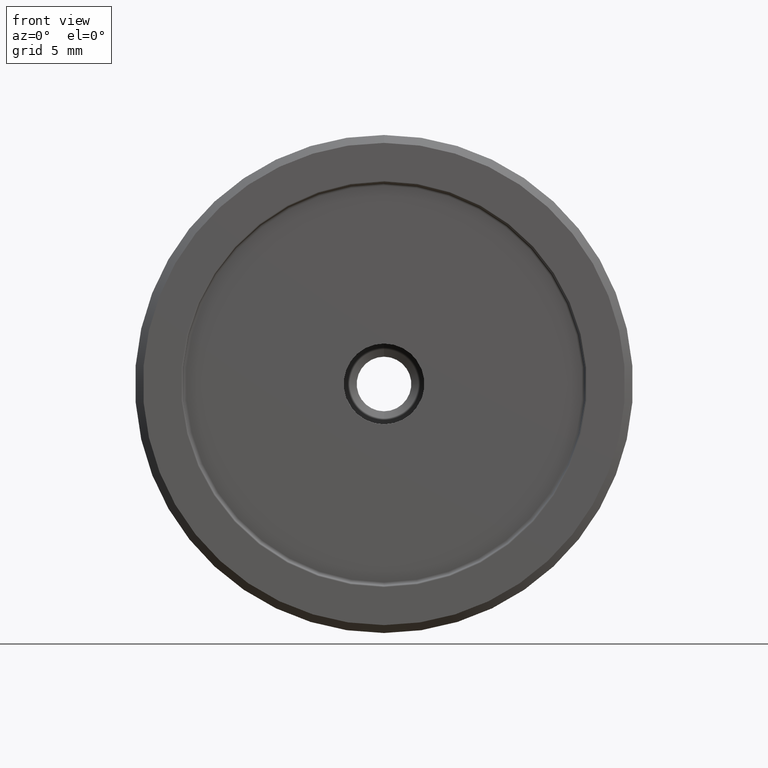
[diagram: clean part render]
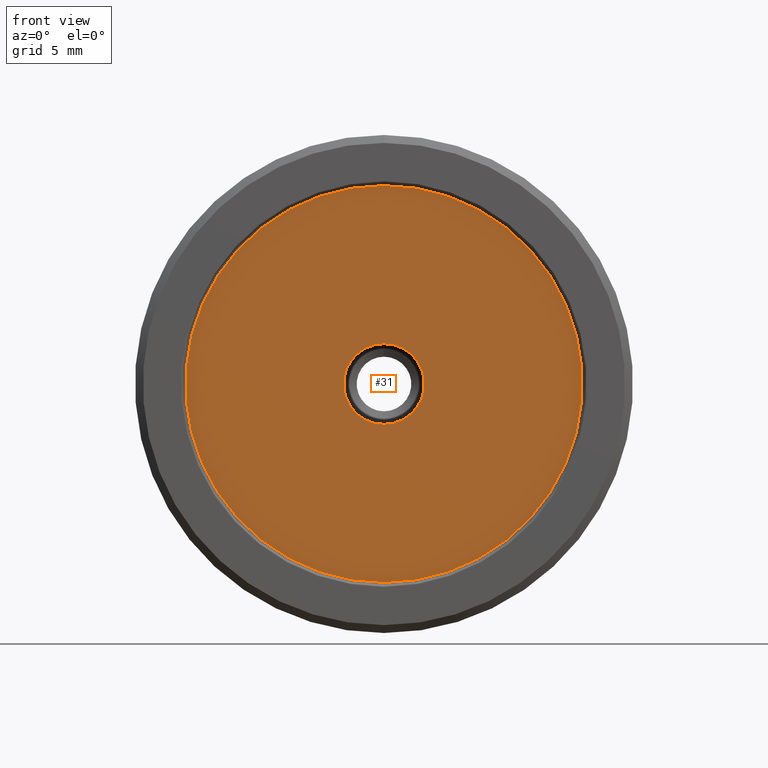
[diagram: same view with one face highlighted and labeled with its STEP entity id]
A machine part, front view. The second image highlights one B-rep face of the part: STEP entity #31.
In plain terms, the highlighted planar face has unit normal (0, 1, 0).
Its self-contained STEP definition (entity closure, byte-faithful):
#31 = ADVANCED_FACE ( 'NONE', ( #1423, #580 ), #1391, .F. ) ;
#51 = CARTESIAN_POINT ( 'NONE',  ( 0.000000000000000000, 0.5000000000000002220, 0.000000000000000000 ) ) ;
#57 = AXIS2_PLACEMENT_3D ( 'NONE', #307, #199, #551 ) ;
#94 = AXIS2_PLACEMENT_3D ( 'NONE', #1286, #1412, #712 ) ;
#97 = DIRECTION ( 'NONE',  ( 0.000000000000000000, 1.000000000000000000, 0.000000000000000000 ) ) ;
#101 = EDGE_CURVE ( 'NONE', #916, #1390, #639, .T. ) ;
#199 = DIRECTION ( 'NONE',  ( -0.000000000000000000, -1.000000000000000000, -0.000000000000000000 ) ) ;
#234 = DIRECTION ( 'NONE',  ( 0.000000000000000000, 0.000000000000000000, 1.000000000000000000 ) ) ;
#293 = VERTEX_POINT ( 'NONE', #1173 ) ;
#307 = CARTESIAN_POINT ( 'NONE',  ( 0.000000000000000000, 0.5000000000000004441, 0.000000000000000000 ) ) ;
#327 = CARTESIAN_POINT ( 'NONE',  ( 0.000000000000000000, 0.5000000000000002220, -2.552699999999998859 ) ) ;
#334 = CIRCLE ( 'NONE', #721, 2.552699999999998859 ) ;
#340 = AXIS2_PLACEMENT_3D ( 'NONE', #795, #97, #234 ) ;
#371 = CARTESIAN_POINT ( 'NONE',  ( -12.54999999999999893, 0.5000000000000002220, 0.000000000000000000 ) ) ;
#460 = EDGE_LOOP ( 'NONE', ( #925, #1042 ) ) ;
#478 = DIRECTION ( 'NONE',  ( 0.000000000000000000, -0.000000000000000000, 1.000000000000000000 ) ) ;
#499 = DIRECTION ( 'NONE',  ( 0.000000000000000000, 0.000000000000000000, 1.000000000000000000 ) ) ;
#503 = CIRCLE ( 'NONE', #57, 12.54999999999999893 ) ;
#551 = DIRECTION ( 'NONE',  ( 0.000000000000000000, 0.000000000000000000, -1.000000000000000000 ) ) ;
#580 = FACE_OUTER_BOUND ( 'NONE', #460, .T. ) ;
#587 = DIRECTION ( 'NONE',  ( 0.000000000000000000, 1.000000000000000000, 0.000000000000000000 ) ) ;
#612 = CARTESIAN_POINT ( 'NONE',  ( 1.549178200921401754E-15, 0.5000000000000004441, 12.54999999999999893 ) ) ;
#639 = CIRCLE ( 'NONE', #340, 2.552699999999998859 ) ;
#674 = EDGE_CURVE ( 'NONE', #293, #819, #503, .T. ) ;
#712 = DIRECTION ( 'NONE',  ( 0.000000000000000000, 0.000000000000000000, -1.000000000000000000 ) ) ;
#721 = AXIS2_PLACEMENT_3D ( 'NONE', #51, #820, #499 ) ;
#795 = CARTESIAN_POINT ( 'NONE',  ( 0.000000000000000000, 0.5000000000000002220, 0.000000000000000000 ) ) ;
#819 = VERTEX_POINT ( 'NONE', #612 ) ;
#820 = DIRECTION ( 'NONE',  ( 0.000000000000000000, 1.000000000000000000, 0.000000000000000000 ) ) ;
#894 = CARTESIAN_POINT ( 'NONE',  ( 3.126155884183447267E-16, 0.5000000000000002220, 2.552699999999998859 ) ) ;
#916 = VERTEX_POINT ( 'NONE', #894 ) ;
#925 = ORIENTED_EDGE ( 'NONE', *, *, #674, .T. ) ;
#1042 = ORIENTED_EDGE ( 'NONE', *, *, #1353, .T. ) ;
#1094 = CIRCLE ( 'NONE', #94, 12.54999999999999893 ) ;
#1163 = ORIENTED_EDGE ( 'NONE', *, *, #1344, .T. ) ;
#1173 = CARTESIAN_POINT ( 'NONE',  ( 0.000000000000000000, 0.5000000000000004441, -12.54999999999999893 ) ) ;
#1286 = CARTESIAN_POINT ( 'NONE',  ( 0.000000000000000000, 0.5000000000000004441, 0.000000000000000000 ) ) ;
#1320 = ORIENTED_EDGE ( 'NONE', *, *, #101, .T. ) ;
#1344 = EDGE_CURVE ( 'NONE', #1390, #916, #334, .T. ) ;
#1353 = EDGE_CURVE ( 'NONE', #819, #293, #1094, .T. ) ;
#1390 = VERTEX_POINT ( 'NONE', #327 ) ;
#1391 = PLANE ( 'NONE',  #1417 ) ;
#1412 = DIRECTION ( 'NONE',  ( -0.000000000000000000, -1.000000000000000000, -0.000000000000000000 ) ) ;
#1417 = AXIS2_PLACEMENT_3D ( 'NONE', #371, #587, #478 ) ;
#1423 = FACE_BOUND ( 'NONE', #1453, .T. ) ;
#1453 = EDGE_LOOP ( 'NONE', ( #1163, #1320 ) ) ;